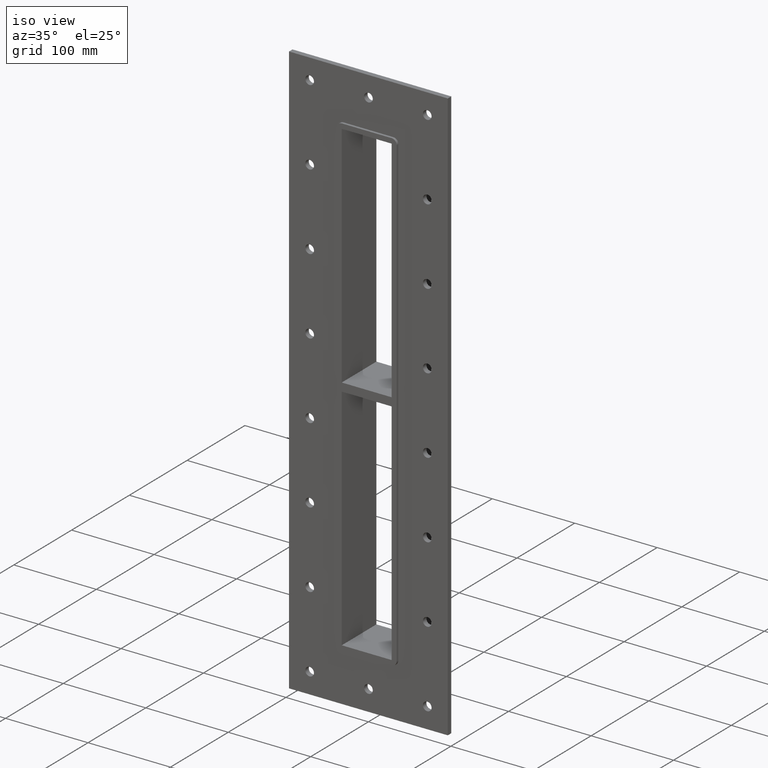
[diagram: clean part render]
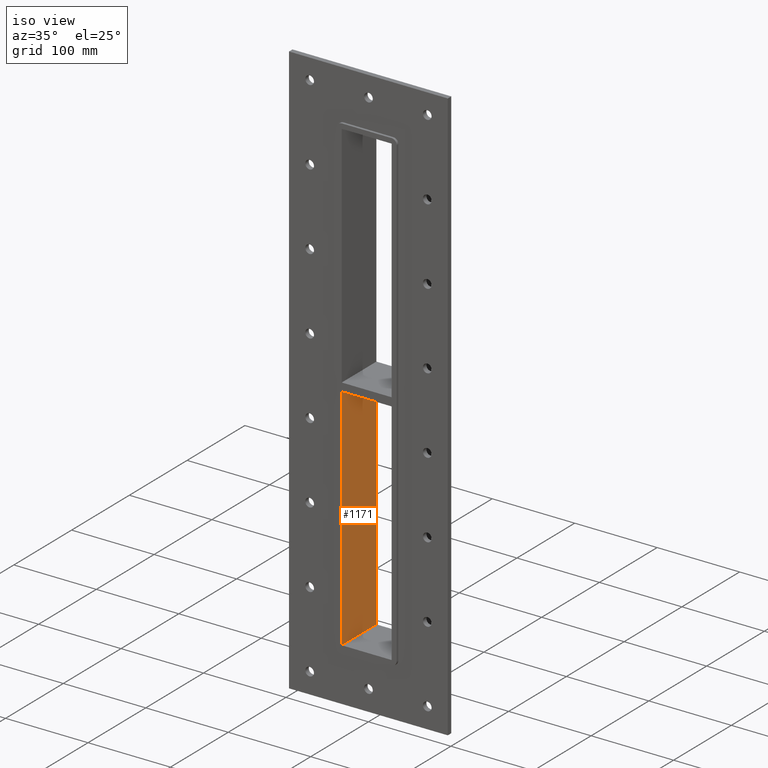
[diagram: same view with one face highlighted and labeled with its STEP entity id]
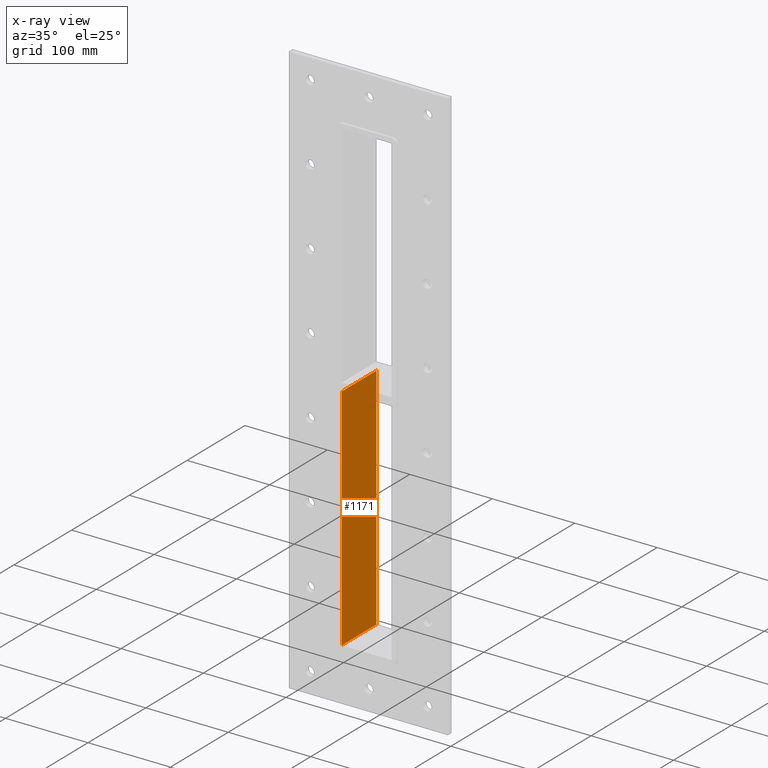
[diagram: x-ray of the same camera — body ghosted, the highlighted face saturated]
A machine part, iso view. The second image highlights one B-rep face of the part: STEP entity #1171.
The next image is the same camera in x-ray: the body ghosted, the highlighted face saturated — about 0% of this face is hidden behind the body in this view.
In plain terms, the highlighted planar face has unit normal (-1, 0, 0).
Its self-contained STEP definition (entity closure, byte-faithful):
#579=CARTESIAN_POINT('',(-30.249999999999737,-3.0,-5.000000000011369));
#580=VERTEX_POINT('',#579);
#587=CARTESIAN_POINT('',(-30.249999999999737,57.0,-5.000000000011369));
#588=VERTEX_POINT('',#587);
#589=CARTESIAN_POINT('',(-30.250000000000004,57.000000000000007,-5.00000000001137));
#590=DIRECTION('',(0.0,-1.0,0.0));
#591=VECTOR('',#590,60.000000000000007);
#592=LINE('',#589,#591);
#593=EDGE_CURVE('',#588,#580,#592,.T.);
#1141=CARTESIAN_POINT('',(-30.250000000000004,0.0,-283.00000000000006));
#1142=DIRECTION('',(-1.0,0.0,0.0));
#1143=DIRECTION('',(0.0,0.0,1.0));
#1144=AXIS2_PLACEMENT_3D('',#1141,#1142,#1143);
#1145=PLANE('',#1144);
#1146=ORIENTED_EDGE('',*,*,#593,.T.);
#1147=CARTESIAN_POINT('',(-30.250000000000004,-3.0,-283.00000000000006));
#1148=VERTEX_POINT('',#1147);
#1149=CARTESIAN_POINT('',(-30.250000000000004,-3.0,-283.0));
#1150=DIRECTION('',(0.0,0.0,1.0));
#1151=VECTOR('',#1150,277.99999999998863);
#1152=LINE('',#1149,#1151);
#1153=EDGE_CURVE('',#1148,#580,#1152,.T.);
#1154=ORIENTED_EDGE('',*,*,#1153,.F.);
#1155=CARTESIAN_POINT('',(-30.250000000000004,57.0,-283.00000000000006));
#1156=VERTEX_POINT('',#1155);
#1157=CARTESIAN_POINT('',(-30.250000000000004,-3.0,-283.00000000000006));
#1158=DIRECTION('',(0.0,1.0,0.0));
#1159=VECTOR('',#1158,60.0);
#1160=LINE('',#1157,#1159);
#1161=EDGE_CURVE('',#1148,#1156,#1160,.T.);
#1162=ORIENTED_EDGE('',*,*,#1161,.T.);
#1163=CARTESIAN_POINT('',(-30.250000000000004,57.0,-5.000000000011369));
#1164=DIRECTION('',(0.0,0.0,-1.0));
#1165=VECTOR('',#1164,277.99999999998863);
#1166=LINE('',#1163,#1165);
#1167=EDGE_CURVE('',#588,#1156,#1166,.T.);
#1168=ORIENTED_EDGE('',*,*,#1167,.F.);
#1169=EDGE_LOOP('',(#1146,#1154,#1162,#1168));
#1170=FACE_OUTER_BOUND('',#1169,.T.);
#1171=ADVANCED_FACE('',(#1170),#1145,.F.);